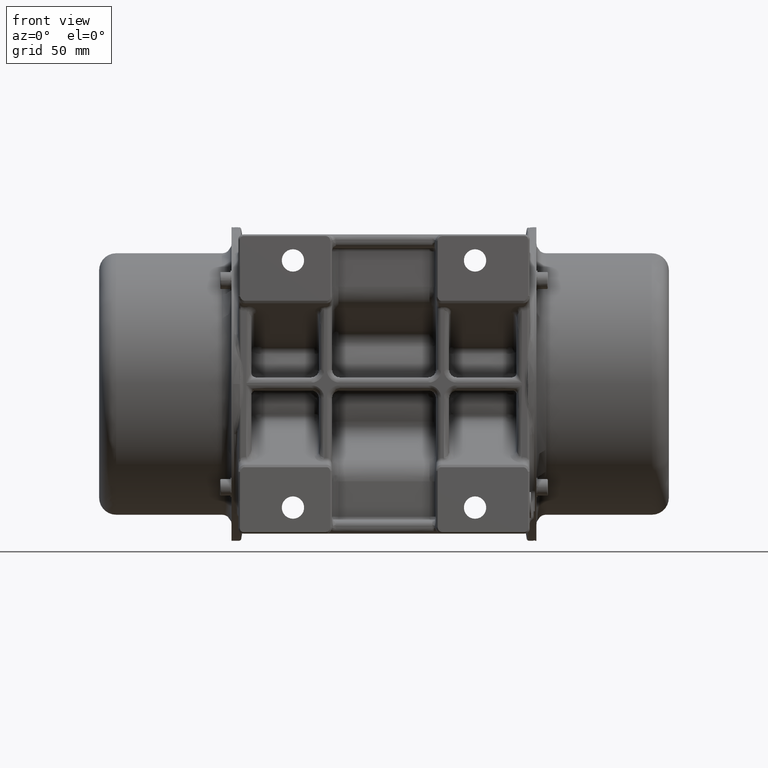
[diagram: clean part render]
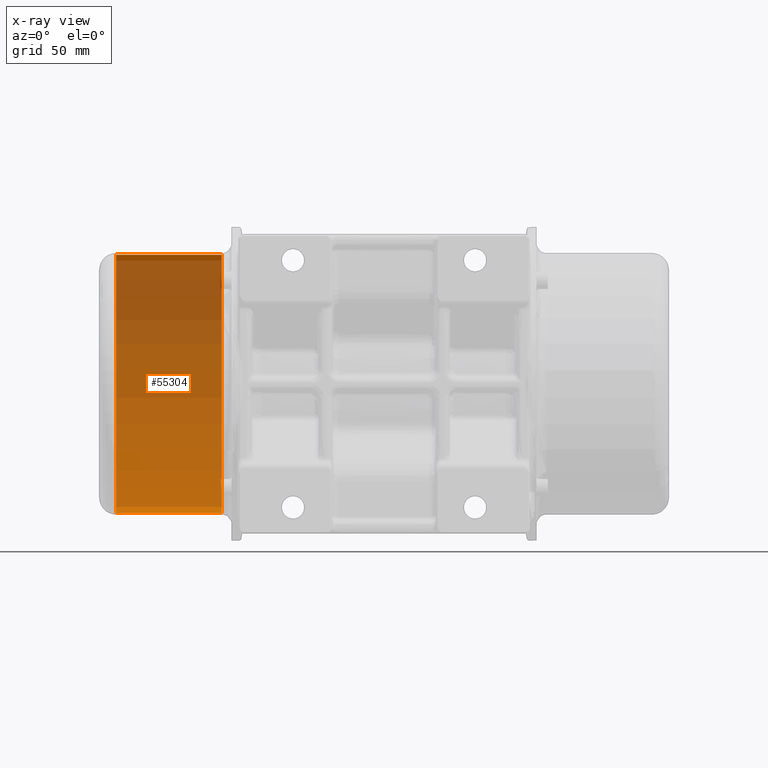
[diagram: x-ray — body ghosted, one internal face saturated and labeled with its STEP entity id]
A machine part, front view, then the same camera in x-ray: the body is ghosted and one INTERNAL B-rep face — a face not visible from any outside direction — is saturated and labeled: STEP entity #55304.
In plain terms, the highlighted cylindrical surface (partial cylindrical patch) has radius 99.3 mm, axis along (1, -0, 0).
Its self-contained STEP definition (entity closure, byte-faithful):
#8379 = CARTESIAN_POINT ( 'NONE',  ( -211.3579501043699900, 36.10843668353398800, -99.29999999999944300 ) ) ;
#8381 = CARTESIAN_POINT ( 'NONE',  ( -211.3579501043699900, 36.10843668353400200, 99.30000000000055100 ) ) ;
#8382 = CARTESIAN_POINT ( 'NONE',  ( -130.0579501043700100, 36.10843668353398800, -99.29999999999944300 ) ) ;
#8384 = CARTESIAN_POINT ( 'NONE',  ( -130.0579501043700100, 36.10843668353400200, 99.30000000000055100 ) ) ;
#30947 = FACE_OUTER_BOUND ( 'NONE', #186786, .T. ) ;
#30948 = CYLINDRICAL_SURFACE ( 'NONE', #124841, 99.29999999999999700 ) ;
#31675 = LINE ( 'NONE', #94165, #31689 ) ;
#31678 = CIRCLE ( 'NONE', #125061, 99.29999999999999700 ) ;
#31688 = VECTOR ( 'NONE', #94179, 1000.000000000000000 ) ;
#31689 = VECTOR ( 'NONE', #94171, 1000.000000000000000 ) ;
#31691 = LINE ( 'NONE', #94166, #31688 ) ;
#31692 = CIRCLE ( 'NONE', #125058, 99.29999999999999700 ) ;
#55304 = ADVANCED_FACE ( 'NONE', ( #30947 ), #30948, .F. ) ;
#62279 = EDGE_CURVE ( 'NONE', #173485, #173486, #31678, .T. ) ;
#62288 = EDGE_CURVE ( 'NONE', #173483, #173485, #31675, .T. ) ;
#62289 = EDGE_CURVE ( 'NONE', #173483, #173484, #31692, .T. ) ;
#62290 = EDGE_CURVE ( 'NONE', #173484, #173486, #31691, .T. ) ;
#69854 = ORIENTED_EDGE ( 'NONE', *, *, #62289, .F. ) ;
#69857 = ORIENTED_EDGE ( 'NONE', *, *, #62288, .T. ) ;
#69860 = ORIENTED_EDGE ( 'NONE', *, *, #62279, .T. ) ;
#69864 = ORIENTED_EDGE ( 'NONE', *, *, #62290, .F. ) ;
#70143 = DIRECTION ( 'NONE',  ( 0.0000000000000000000, 0.0000000000000000000, 1.000000000000000000 ) ) ;
#70144 = DIRECTION ( 'NONE',  ( 1.000000000000000000, -6.617445194922528500E-024, 3.202887553410824600E-031 ) ) ;
#70152 = CARTESIAN_POINT ( 'NONE',  ( -106.8419361915210000, 36.10843668353400200, 5.551115123125780700E-013 ) ) ;
#94132 = CARTESIAN_POINT ( 'NONE',  ( -130.0579501043700100, 36.10843668353400200, 5.551115123125780700E-013 ) ) ;
#94134 = DIRECTION ( 'NONE',  ( 1.000000000000000000, -6.617445194922528500E-024, 3.202887553410824600E-031 ) ) ;
#94135 = DIRECTION ( 'NONE',  ( 0.0000000000000000000, 0.0000000000000000000, 1.000000000000000000 ) ) ;
#94165 = CARTESIAN_POINT ( 'NONE',  ( -106.8419361915210000, 36.10843668353398800, -99.29999999999944300 ) ) ;
#94166 = CARTESIAN_POINT ( 'NONE',  ( -106.8419361915210000, 36.10843668353400200, 99.30000000000055100 ) ) ;
#94169 = CARTESIAN_POINT ( 'NONE',  ( -211.3579501043699900, 36.10843668353400200, 5.551115123125790800E-013 ) ) ;
#94171 = DIRECTION ( 'NONE',  ( 1.000000000000000000, -6.617445194922528500E-024, 3.202887553410824600E-031 ) ) ;
#94174 = DIRECTION ( 'NONE',  ( 1.000000000000000000, -6.617445194922528500E-024, 3.202887553410824600E-031 ) ) ;
#94175 = DIRECTION ( 'NONE',  ( 0.0000000000000000000, 0.0000000000000000000, 1.000000000000000000 ) ) ;
#94179 = DIRECTION ( 'NONE',  ( 1.000000000000000000, -6.617445194922528500E-024, 3.202887553410824600E-031 ) ) ;
#124841 = AXIS2_PLACEMENT_3D ( 'NONE', #70152, #70144, #70143 ) ;
#125058 = AXIS2_PLACEMENT_3D ( 'NONE', #94169, #94174, #94175 ) ;
#125061 = AXIS2_PLACEMENT_3D ( 'NONE', #94132, #94134, #94135 ) ;
#173483 = VERTEX_POINT ( 'NONE', #8379 ) ;
#173484 = VERTEX_POINT ( 'NONE', #8381 ) ;
#173485 = VERTEX_POINT ( 'NONE', #8382 ) ;
#173486 = VERTEX_POINT ( 'NONE', #8384 ) ;
#186786 = EDGE_LOOP ( 'NONE', ( #69854, #69857, #69860, #69864 ) ) ;